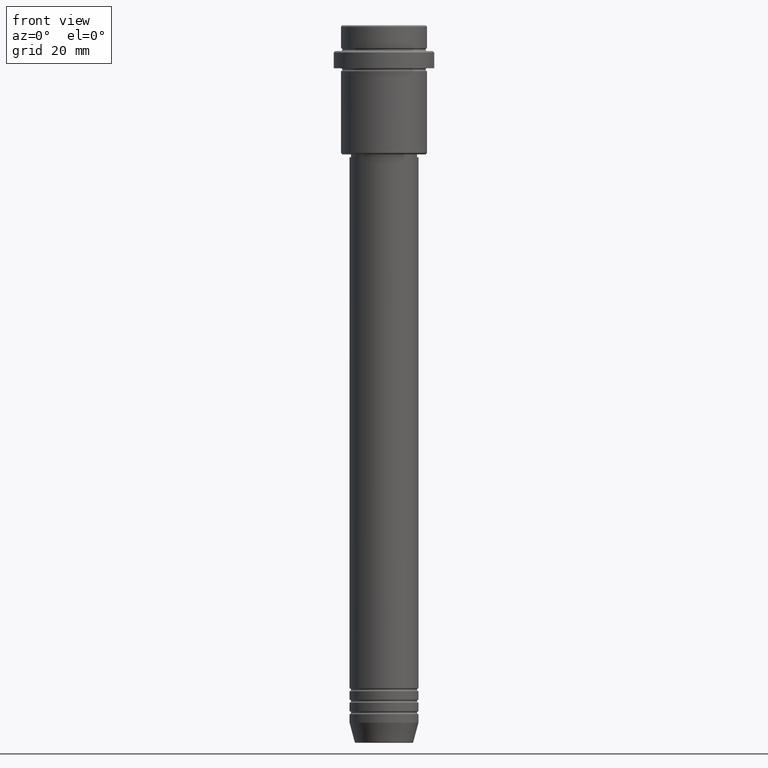
[diagram: clean part render]
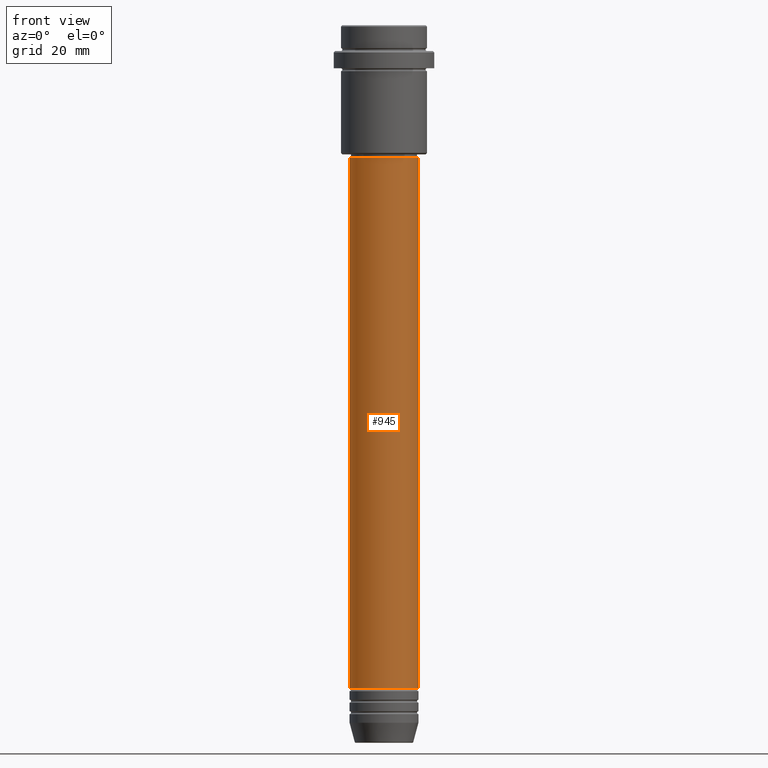
[diagram: same view with one face highlighted and labeled with its STEP entity id]
A machine part, front view. The second image highlights one B-rep face of the part: STEP entity #945.
In plain terms, the highlighted cylindrical surface (edge-blend (fillet) strip) has radius 12 mm, axis along (-0, -0, 1).
Its self-contained STEP definition (entity closure, byte-faithful):
#51 = LINE ( 'NONE', #230, #736 ) ;
#134 = ORIENTED_EDGE ( 'NONE', *, *, #145, .T. ) ;
#145 = EDGE_CURVE ( 'NONE', #267, #680, #197, .T. ) ;
#176 = CYLINDRICAL_SURFACE ( 'NONE', #381, 12.00000000000000000 ) ;
#197 = CIRCLE ( 'NONE', #753, 12.00000000000000000 ) ;
#207 = DIRECTION ( 'NONE',  ( -0.000000000000000000, -0.000000000000000000, 1.000000000000000000 ) ) ;
#230 = CARTESIAN_POINT ( 'NONE',  ( 12.00000000000000000, 0.000000000000000000, 0.000000000000000000 ) ) ;
#250 = CARTESIAN_POINT ( 'NONE',  ( -11.99999999999999822, 1.469576158976823750E-15, -46.00000000000001421 ) ) ;
#263 = ORIENTED_EDGE ( 'NONE', *, *, #970, .T. ) ;
#267 = VERTEX_POINT ( 'NONE', #1012 ) ;
#275 = DIRECTION ( 'NONE',  ( 1.000000000000000000, 0.000000000000000000, 0.000000000000000000 ) ) ;
#372 = ORIENTED_EDGE ( 'NONE', *, *, #850, .F. ) ;
#381 = AXIS2_PLACEMENT_3D ( 'NONE', #1184, #207, #275 ) ;
#412 = DIRECTION ( 'NONE',  ( 1.000000000000000000, 0.000000000000000000, 0.000000000000000000 ) ) ;
#450 = VERTEX_POINT ( 'NONE', #1138 ) ;
#470 = AXIS2_PLACEMENT_3D ( 'NONE', #1250, #1375, #823 ) ;
#490 = CARTESIAN_POINT ( 'NONE',  ( 12.00000000000000000, 0.000000000000000000, -230.9999999999998863 ) ) ;
#587 = VECTOR ( 'NONE', #998, 1000.000000000000000 ) ;
#614 = CIRCLE ( 'NONE', #470, 11.99999999999999822 ) ;
#680 = VERTEX_POINT ( 'NONE', #490 ) ;
#682 = FACE_OUTER_BOUND ( 'NONE', #796, .T. ) ;
#684 = ORIENTED_EDGE ( 'NONE', *, *, #886, .F. ) ;
#724 = DIRECTION ( 'NONE',  ( -0.000000000000000000, -0.000000000000000000, 1.000000000000000000 ) ) ;
#736 = VECTOR ( 'NONE', #1016, 1000.000000000000000 ) ;
#753 = AXIS2_PLACEMENT_3D ( 'NONE', #964, #724, #412 ) ;
#766 = LINE ( 'NONE', #770, #587 ) ;
#770 = CARTESIAN_POINT ( 'NONE',  ( -12.00000000000000000, 1.469576158976823947E-15, 0.000000000000000000 ) ) ;
#796 = EDGE_LOOP ( 'NONE', ( #684, #134, #263, #372 ) ) ;
#823 = DIRECTION ( 'NONE',  ( 1.000000000000000000, 0.000000000000000000, 0.000000000000000000 ) ) ;
#850 = EDGE_CURVE ( 'NONE', #1062, #450, #614, .T. ) ;
#886 = EDGE_CURVE ( 'NONE', #267, #1062, #766, .T. ) ;
#945 = ADVANCED_FACE ( 'NONE', ( #682 ), #176, .T. ) ;
#964 = CARTESIAN_POINT ( 'NONE',  ( 0.000000000000000000, 0.000000000000000000, -230.9999999999998863 ) ) ;
#970 = EDGE_CURVE ( 'NONE', #680, #450, #51, .T. ) ;
#998 = DIRECTION ( 'NONE',  ( -0.000000000000000000, -0.000000000000000000, 1.000000000000000000 ) ) ;
#1012 = CARTESIAN_POINT ( 'NONE',  ( -12.00000000000000000, 1.469576158976823947E-15, -230.9999999999998863 ) ) ;
#1016 = DIRECTION ( 'NONE',  ( -0.000000000000000000, -0.000000000000000000, 1.000000000000000000 ) ) ;
#1062 = VERTEX_POINT ( 'NONE', #250 ) ;
#1138 = CARTESIAN_POINT ( 'NONE',  ( 11.99999999999999822, 0.000000000000000000, -46.00000000000001421 ) ) ;
#1184 = CARTESIAN_POINT ( 'NONE',  ( 0.000000000000000000, 0.000000000000000000, 0.000000000000000000 ) ) ;
#1250 = CARTESIAN_POINT ( 'NONE',  ( 0.000000000000000000, 0.000000000000000000, -46.00000000000001421 ) ) ;
#1375 = DIRECTION ( 'NONE',  ( -0.000000000000000000, -0.000000000000000000, 1.000000000000000000 ) ) ;